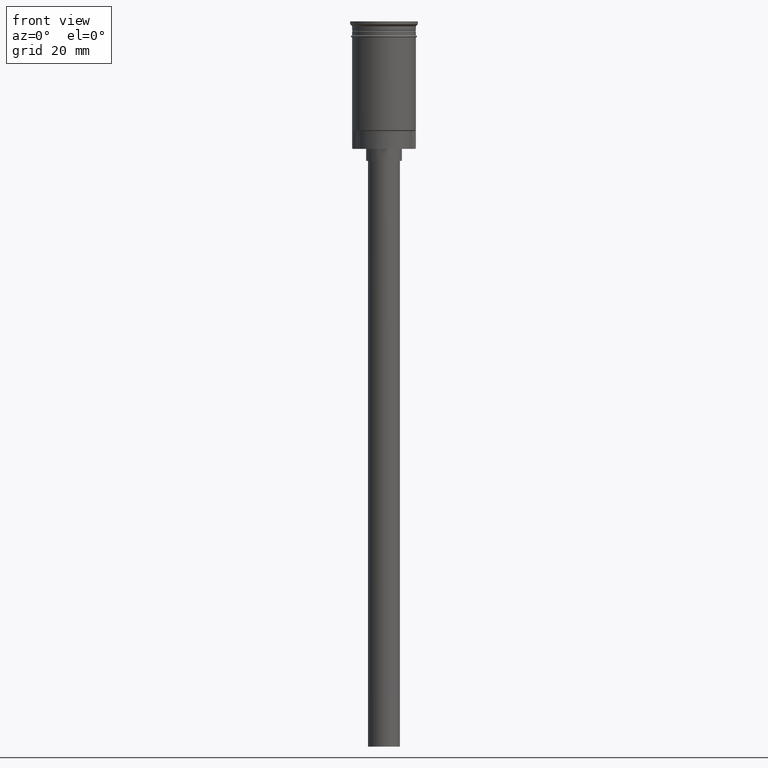
[diagram: clean part render]
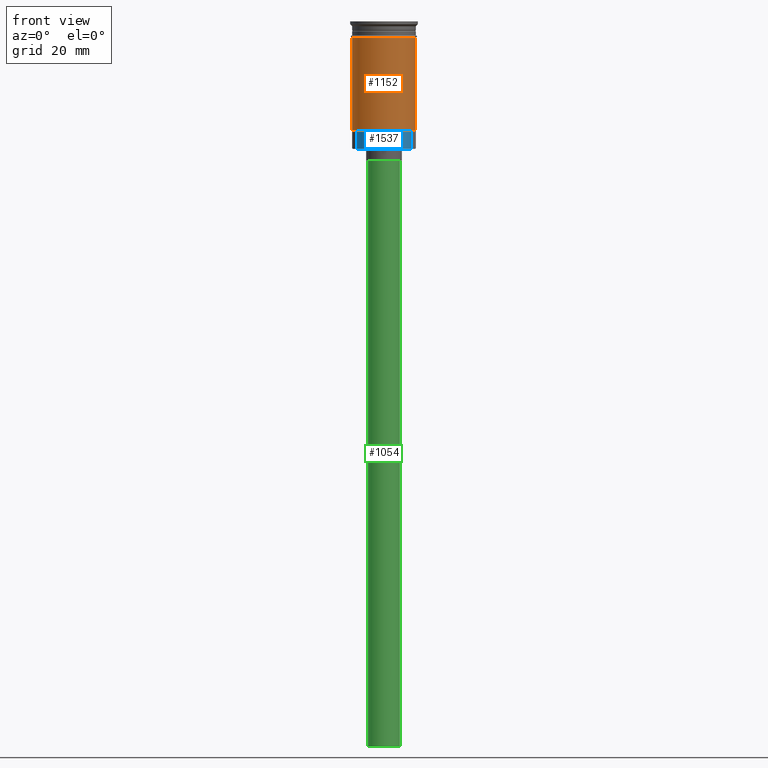
[diagram: same view with three faces highlighted in distinct colors, each labeled with its STEP entity id]
A machine part, front view with three faces highlighted in distinct colors.
Their STEP definitions:

[orange] entity #1152 — the highlighted cylindrical surface (edge-blend (fillet) strip) has radius 8 mm, axis along (-0, -0, 1).
#11 = ORIENTED_EDGE ( 'NONE', *, *, #85, .F. ) ;
#85 = EDGE_CURVE ( 'NONE', #171, #248, #981, .T. ) ;
#103 = VECTOR ( 'NONE', #1174, 1000.000000000000000 ) ;
#114 = CARTESIAN_POINT ( 'NONE',  ( 0.000000000000000000, 0.000000000000000000, -3.999999999999997335 ) ) ;
#128 = AXIS2_PLACEMENT_3D ( 'NONE', #1281, #1068, #667 ) ;
#153 = CARTESIAN_POINT ( 'NONE',  ( 0.000000000000000000, 0.000000000000000000, -27.29999999999996518 ) ) ;
#158 = ORIENTED_EDGE ( 'NONE', *, *, #1124, .T. ) ;
#171 = VERTEX_POINT ( 'NONE', #1119 ) ;
#206 = EDGE_CURVE ( 'NONE', #1462, #922, #1253, .T. ) ;
#248 = VERTEX_POINT ( 'NONE', #614 ) ;
#318 = CARTESIAN_POINT ( 'NONE',  ( 7.999999999999996447, 0.000000000000000000, 0.000000000000000000 ) ) ;
#331 = CARTESIAN_POINT ( 'NONE',  ( -7.999999999999996447, 9.797174393178821713E-16, 0.000000000000000000 ) ) ;
#398 = DIRECTION ( 'NONE',  ( -0.000000000000000000, -0.000000000000000000, 1.000000000000000000 ) ) ;
#520 = ORIENTED_EDGE ( 'NONE', *, *, #1197, .F. ) ;
#563 = FACE_OUTER_BOUND ( 'NONE', #717, .T. ) ;
#614 = CARTESIAN_POINT ( 'NONE',  ( 8.000000000000000000, 0.000000000000000000, -3.999999999999997335 ) ) ;
#650 = LINE ( 'NONE', #318, #103 ) ;
#667 = DIRECTION ( 'NONE',  ( 1.000000000000000000, 0.000000000000000000, 0.000000000000000000 ) ) ;
#717 = EDGE_LOOP ( 'NONE', ( #520, #1167, #158, #11 ) ) ;
#851 = AXIS2_PLACEMENT_3D ( 'NONE', #114, #1582, #1443 ) ;
#897 = CARTESIAN_POINT ( 'NONE',  ( -7.999999999999992895, 0.000000000000000000, -27.29999999999996518 ) ) ;
#922 = VERTEX_POINT ( 'NONE', #1455 ) ;
#934 = VECTOR ( 'NONE', #1304, 1000.000000000000000 ) ;
#981 = CIRCLE ( 'NONE', #851, 8.000000000000000000 ) ;
#1068 = DIRECTION ( 'NONE',  ( -0.000000000000000000, -0.000000000000000000, 1.000000000000000000 ) ) ;
#1119 = CARTESIAN_POINT ( 'NONE',  ( -8.000000000000000000, 9.797174393178825657E-16, -3.999999999999997335 ) ) ;
#1124 = EDGE_CURVE ( 'NONE', #922, #248, #650, .T. ) ;
#1152 = ADVANCED_FACE ( 'NONE', ( #563 ), #1314, .T. ) ;
#1167 = ORIENTED_EDGE ( 'NONE', *, *, #206, .T. ) ;
#1174 = DIRECTION ( 'NONE',  ( -0.000000000000000000, -0.000000000000000000, 1.000000000000000000 ) ) ;
#1197 = EDGE_CURVE ( 'NONE', #1462, #171, #1407, .T. ) ;
#1253 = CIRCLE ( 'NONE', #1464, 7.999999999999996447 ) ;
#1281 = CARTESIAN_POINT ( 'NONE',  ( 0.000000000000000000, 0.000000000000000000, 0.000000000000000000 ) ) ;
#1304 = DIRECTION ( 'NONE',  ( -0.000000000000000000, -0.000000000000000000, 1.000000000000000000 ) ) ;
#1314 = CYLINDRICAL_SURFACE ( 'NONE', #128, 7.999999999999996447 ) ;
#1407 = LINE ( 'NONE', #331, #934 ) ;
#1443 = DIRECTION ( 'NONE',  ( 1.000000000000000000, 0.000000000000000000, 0.000000000000000000 ) ) ;
#1455 = CARTESIAN_POINT ( 'NONE',  ( 7.999999999999996447, 9.797174393178821713E-16, -27.29999999999996518 ) ) ;
#1462 = VERTEX_POINT ( 'NONE', #897 ) ;
#1464 = AXIS2_PLACEMENT_3D ( 'NONE', #153, #398, #1500 ) ;
#1500 = DIRECTION ( 'NONE',  ( -1.000000000000000000, 0.000000000000000000, 0.000000000000000000 ) ) ;
#1582 = DIRECTION ( 'NONE',  ( -0.000000000000000000, -0.000000000000000000, 1.000000000000000000 ) ) ;

[blue] entity #1537 — the highlighted cylindrical surface (edge-blend (fillet) strip) has radius 7.05 mm, axis along (-0, -0, 1).
#32 = EDGE_CURVE ( 'NONE', #978, #1252, #1204, .T. ) ;
#46 = CIRCLE ( 'NONE', #1416, 7.049999999999998934 ) ;
#59 = CARTESIAN_POINT ( 'NONE',  ( 6.839661847014925300, -1.709247149621250017, -32.00000000000000000 ) ) ;
#95 = CARTESIAN_POINT ( 'NONE',  ( 6.839661847014925300, -1.709247149621250017, -27.50000000000000355 ) ) ;
#190 = VERTEX_POINT ( 'NONE', #1233 ) ;
#195 = CYLINDRICAL_SURFACE ( 'NONE', #1261, 7.049999999999998934 ) ;
#202 = ORIENTED_EDGE ( 'NONE', *, *, #755, .T. ) ;
#207 = LINE ( 'NONE', #59, #1491 ) ;
#224 = DIRECTION ( 'NONE',  ( 0.000000000000000000, 0.000000000000000000, -1.000000000000000000 ) ) ;
#310 = AXIS2_PLACEMENT_3D ( 'NONE', #724, #224, #715 ) ;
#349 = DIRECTION ( 'NONE',  ( -0.000000000000000000, -0.000000000000000000, 1.000000000000000000 ) ) ;
#448 = VERTEX_POINT ( 'NONE', #95 ) ;
#462 = EDGE_CURVE ( 'NONE', #1252, #190, #584, .T. ) ;
#584 = LINE ( 'NONE', #1191, #1332 ) ;
#715 = DIRECTION ( 'NONE',  ( -1.000000000000000000, 0.000000000000000000, 0.000000000000000000 ) ) ;
#724 = CARTESIAN_POINT ( 'NONE',  ( 0.000000000000000000, 0.000000000000000000, -32.00000000000000000 ) ) ;
#729 = CARTESIAN_POINT ( 'NONE',  ( 6.839661847014925300, -1.709247149621250017, -32.00000000000000000 ) ) ;
#755 = EDGE_CURVE ( 'NONE', #978, #448, #207, .T. ) ;
#778 = ORIENTED_EDGE ( 'NONE', *, *, #32, .F. ) ;
#793 = DIRECTION ( 'NONE',  ( -0.000000000000000000, -0.000000000000000000, 1.000000000000000000 ) ) ;
#849 = CARTESIAN_POINT ( 'NONE',  ( 0.000000000000000000, 0.000000000000000000, -27.50000000000000355 ) ) ;
#860 = ORIENTED_EDGE ( 'NONE', *, *, #462, .F. ) ;
#881 = ORIENTED_EDGE ( 'NONE', *, *, #924, .T. ) ;
#924 = EDGE_CURVE ( 'NONE', #448, #190, #46, .T. ) ;
#932 = DIRECTION ( 'NONE',  ( -0.000000000000000000, -0.000000000000000000, 1.000000000000000000 ) ) ;
#978 = VERTEX_POINT ( 'NONE', #729 ) ;
#989 = DIRECTION ( 'NONE',  ( 0.000000000000000000, 0.000000000000000000, -1.000000000000000000 ) ) ;
#1050 = FACE_OUTER_BOUND ( 'NONE', #1315, .T. ) ;
#1053 = CARTESIAN_POINT ( 'NONE',  ( -6.839661847014926188, -1.709247149621246686, -32.00000000000000000 ) ) ;
#1091 = DIRECTION ( 'NONE',  ( -1.000000000000000000, 0.000000000000000000, 0.000000000000000000 ) ) ;
#1187 = DIRECTION ( 'NONE',  ( 1.000000000000000000, 0.000000000000000000, 0.000000000000000000 ) ) ;
#1191 = CARTESIAN_POINT ( 'NONE',  ( -6.839661847014926188, -1.709247149621246686, -32.00000000000000000 ) ) ;
#1204 = CIRCLE ( 'NONE', #310, 7.049999999999998934 ) ;
#1233 = CARTESIAN_POINT ( 'NONE',  ( -6.839661847014926188, -1.709247149621246686, -27.50000000000000355 ) ) ;
#1252 = VERTEX_POINT ( 'NONE', #1053 ) ;
#1261 = AXIS2_PLACEMENT_3D ( 'NONE', #1540, #793, #1187 ) ;
#1315 = EDGE_LOOP ( 'NONE', ( #881, #860, #778, #202 ) ) ;
#1332 = VECTOR ( 'NONE', #349, 1000.000000000000000 ) ;
#1416 = AXIS2_PLACEMENT_3D ( 'NONE', #849, #989, #1091 ) ;
#1491 = VECTOR ( 'NONE', #932, 1000.000000000000000 ) ;
#1537 = ADVANCED_FACE ( 'NONE', ( #1050 ), #195, .T. ) ;
#1540 = CARTESIAN_POINT ( 'NONE',  ( 0.000000000000000000, 0.000000000000000000, -32.00000000000000000 ) ) ;

[green] entity #1054 — the highlighted cylindrical surface (edge-blend (fillet) strip) has radius 4 mm, axis along (-0, -0, 1).
#10 = CARTESIAN_POINT ( 'NONE',  ( 4.000000000000000000, 0.000000000000000000, -35.00000000000000000 ) ) ;
#84 = DIRECTION ( 'NONE',  ( -0.000000000000000000, -0.000000000000000000, 1.000000000000000000 ) ) ;
#230 = VECTOR ( 'NONE', #332, 1000.000000000000000 ) ;
#332 = DIRECTION ( 'NONE',  ( -0.000000000000000000, -0.000000000000000000, 1.000000000000000000 ) ) ;
#358 = CARTESIAN_POINT ( 'NONE',  ( 4.000000000000000000, 0.000000000000000000, -182.0000000000000000 ) ) ;
#374 = ORIENTED_EDGE ( 'NONE', *, *, #1564, .T. ) ;
#484 = CARTESIAN_POINT ( 'NONE',  ( -4.000000000000000000, 4.898587196589412829E-16, -35.00000000000000000 ) ) ;
#490 = CIRCLE ( 'NONE', #1384, 4.000000000000000000 ) ;
#556 = EDGE_CURVE ( 'NONE', #1292, #562, #490, .T. ) ;
#562 = VERTEX_POINT ( 'NONE', #1588 ) ;
#568 = CARTESIAN_POINT ( 'NONE',  ( 0.000000000000000000, 0.000000000000000000, -35.00000000000000000 ) ) ;
#574 = LINE ( 'NONE', #680, #230 ) ;
#607 = DIRECTION ( 'NONE',  ( 0.000000000000000000, 0.000000000000000000, -1.000000000000000000 ) ) ;
#637 = EDGE_LOOP ( 'NONE', ( #1099, #1155, #1342, #374 ) ) ;
#639 = CARTESIAN_POINT ( 'NONE',  ( 0.000000000000000000, 0.000000000000000000, -182.0000000000000000 ) ) ;
#659 = DIRECTION ( 'NONE',  ( 1.000000000000000000, 0.000000000000000000, 0.000000000000000000 ) ) ;
#680 = CARTESIAN_POINT ( 'NONE',  ( 4.000000000000000000, 0.000000000000000000, -182.0000000000000000 ) ) ;
#698 = CARTESIAN_POINT ( 'NONE',  ( 0.000000000000000000, 0.000000000000000000, -182.0000000000000000 ) ) ;
#733 = EDGE_CURVE ( 'NONE', #1292, #1454, #574, .T. ) ;
#781 = VECTOR ( 'NONE', #84, 1000.000000000000000 ) ;
#796 = EDGE_CURVE ( 'NONE', #562, #929, #945, .T. ) ;
#831 = CIRCLE ( 'NONE', #1495, 4.000000000000000000 ) ;
#882 = FACE_OUTER_BOUND ( 'NONE', #637, .T. ) ;
#920 = DIRECTION ( 'NONE',  ( -1.000000000000000000, 0.000000000000000000, 0.000000000000000000 ) ) ;
#929 = VERTEX_POINT ( 'NONE', #484 ) ;
#945 = LINE ( 'NONE', #1316, #781 ) ;
#1054 = ADVANCED_FACE ( 'NONE', ( #882 ), #1372, .T. ) ;
#1099 = ORIENTED_EDGE ( 'NONE', *, *, #796, .F. ) ;
#1100 = DIRECTION ( 'NONE',  ( -1.000000000000000000, 0.000000000000000000, 0.000000000000000000 ) ) ;
#1112 = AXIS2_PLACEMENT_3D ( 'NONE', #639, #1510, #659 ) ;
#1155 = ORIENTED_EDGE ( 'NONE', *, *, #556, .F. ) ;
#1276 = DIRECTION ( 'NONE',  ( 0.000000000000000000, 0.000000000000000000, -1.000000000000000000 ) ) ;
#1292 = VERTEX_POINT ( 'NONE', #358 ) ;
#1316 = CARTESIAN_POINT ( 'NONE',  ( -4.000000000000000000, 4.898587196589412829E-16, -182.0000000000000000 ) ) ;
#1342 = ORIENTED_EDGE ( 'NONE', *, *, #733, .T. ) ;
#1372 = CYLINDRICAL_SURFACE ( 'NONE', #1112, 4.000000000000000000 ) ;
#1384 = AXIS2_PLACEMENT_3D ( 'NONE', #698, #607, #1100 ) ;
#1454 = VERTEX_POINT ( 'NONE', #10 ) ;
#1495 = AXIS2_PLACEMENT_3D ( 'NONE', #568, #1276, #920 ) ;
#1510 = DIRECTION ( 'NONE',  ( -0.000000000000000000, -0.000000000000000000, 1.000000000000000000 ) ) ;
#1564 = EDGE_CURVE ( 'NONE', #1454, #929, #831, .T. ) ;
#1588 = CARTESIAN_POINT ( 'NONE',  ( -4.000000000000000000, 4.898587196589412829E-16, -182.0000000000000000 ) ) ;